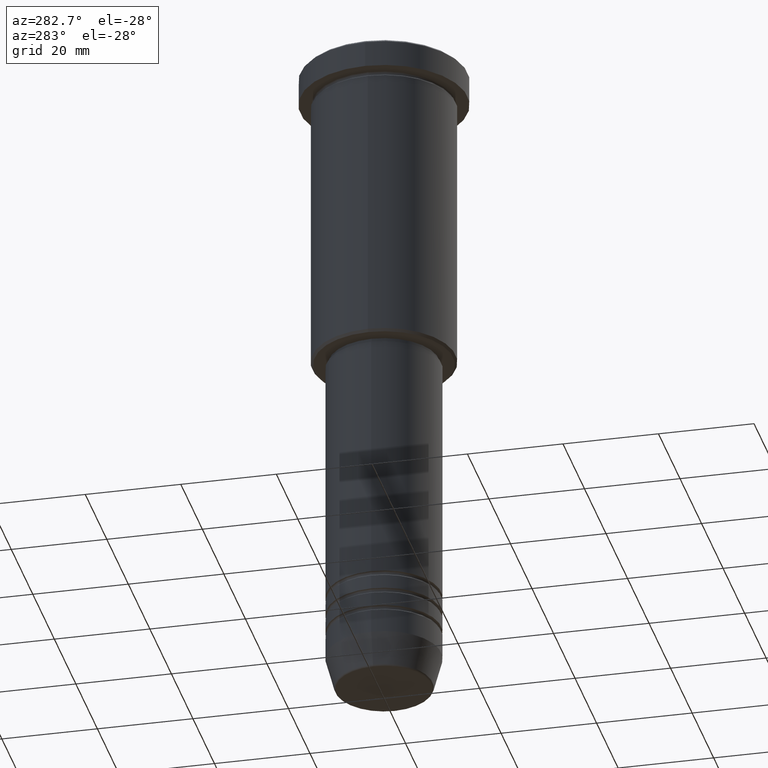
[diagram: clean part render]
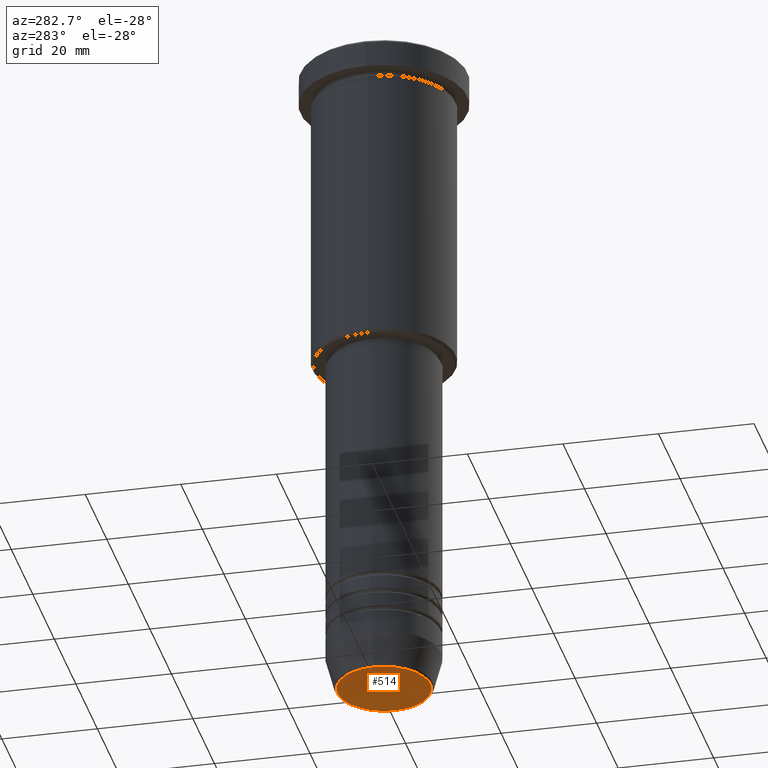
[diagram: same view with one face highlighted and labeled with its STEP entity id]
A machine part, auxiliary view. The second image highlights one B-rep face of the part: STEP entity #514.
In plain terms, the highlighted planar face has unit normal (0, -0, 1).
Its self-contained STEP definition (entity closure, byte-faithful):
#15 = ORIENTED_EDGE ( 'NONE', *, *, #657, .T. ) ;
#64 = DIRECTION ( 'NONE',  ( 0.000000000000000000, 0.000000000000000000, -1.000000000000000000 ) ) ;
#98 = AXIS2_PLACEMENT_3D ( 'NONE', #477, #664, #1026 ) ;
#114 = ORIENTED_EDGE ( 'NONE', *, *, #343, .T. ) ;
#158 = VERTEX_POINT ( 'NONE', #819 ) ;
#218 = CIRCLE ( 'NONE', #1028, 9.740692158992658278 ) ;
#283 = CARTESIAN_POINT ( 'NONE',  ( 9.740692158992658278, 0.000000000000000000, -141.0000000000000000 ) ) ;
#285 = FACE_OUTER_BOUND ( 'NONE', #748, .T. ) ;
#343 = EDGE_CURVE ( 'NONE', #158, #734, #218, .T. ) ;
#398 = PLANE ( 'NONE',  #98 ) ;
#435 = DIRECTION ( 'NONE',  ( 1.000000000000000000, 0.000000000000000000, 0.000000000000000000 ) ) ;
#437 = CARTESIAN_POINT ( 'NONE',  ( 0.000000000000000000, 0.000000000000000000, -141.0000000000000000 ) ) ;
#477 = CARTESIAN_POINT ( 'NONE',  ( 0.000000000000000000, 0.000000000000000000, -141.0000000000000000 ) ) ;
#514 = ADVANCED_FACE ( 'NONE', ( #285 ), #398, .F. ) ;
#536 = DIRECTION ( 'NONE',  ( 1.000000000000000000, 0.000000000000000000, 0.000000000000000000 ) ) ;
#561 = AXIS2_PLACEMENT_3D ( 'NONE', #607, #64, #435 ) ;
#607 = CARTESIAN_POINT ( 'NONE',  ( 0.000000000000000000, 0.000000000000000000, -141.0000000000000000 ) ) ;
#657 = EDGE_CURVE ( 'NONE', #734, #158, #1070, .T. ) ;
#664 = DIRECTION ( 'NONE',  ( 0.000000000000000000, -0.000000000000000000, 1.000000000000000000 ) ) ;
#734 = VERTEX_POINT ( 'NONE', #283 ) ;
#748 = EDGE_LOOP ( 'NONE', ( #15, #114 ) ) ;
#819 = CARTESIAN_POINT ( 'NONE',  ( -9.740692158992658278, 1.222463696683474999E-15, -141.0000000000000000 ) ) ;
#1026 = DIRECTION ( 'NONE',  ( 1.000000000000000000, 0.000000000000000000, 0.000000000000000000 ) ) ;
#1028 = AXIS2_PLACEMENT_3D ( 'NONE', #437, #1071, #536 ) ;
#1070 = CIRCLE ( 'NONE', #561, 9.740692158992658278 ) ;
#1071 = DIRECTION ( 'NONE',  ( 0.000000000000000000, 0.000000000000000000, -1.000000000000000000 ) ) ;